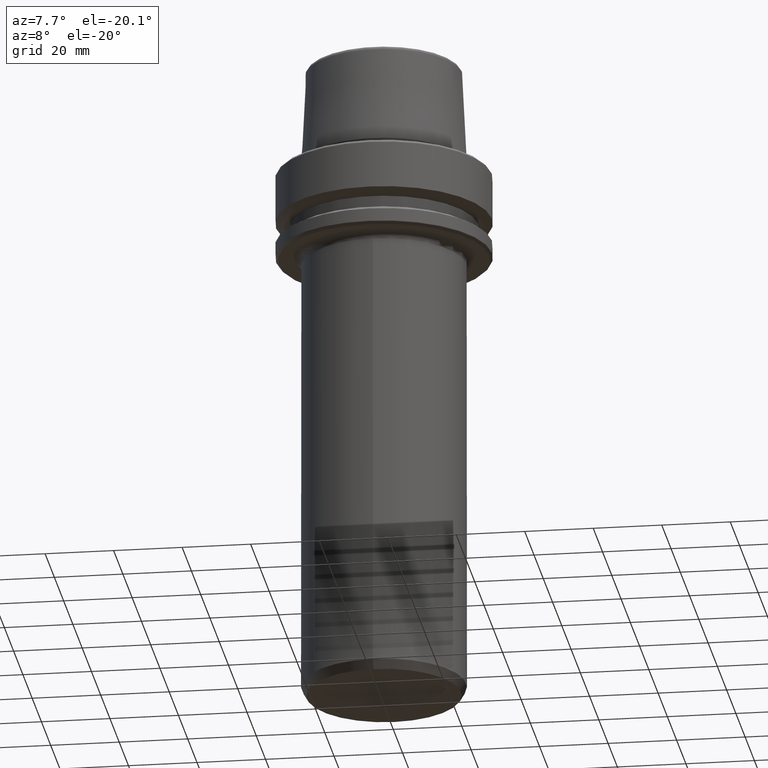
[diagram: clean part render]
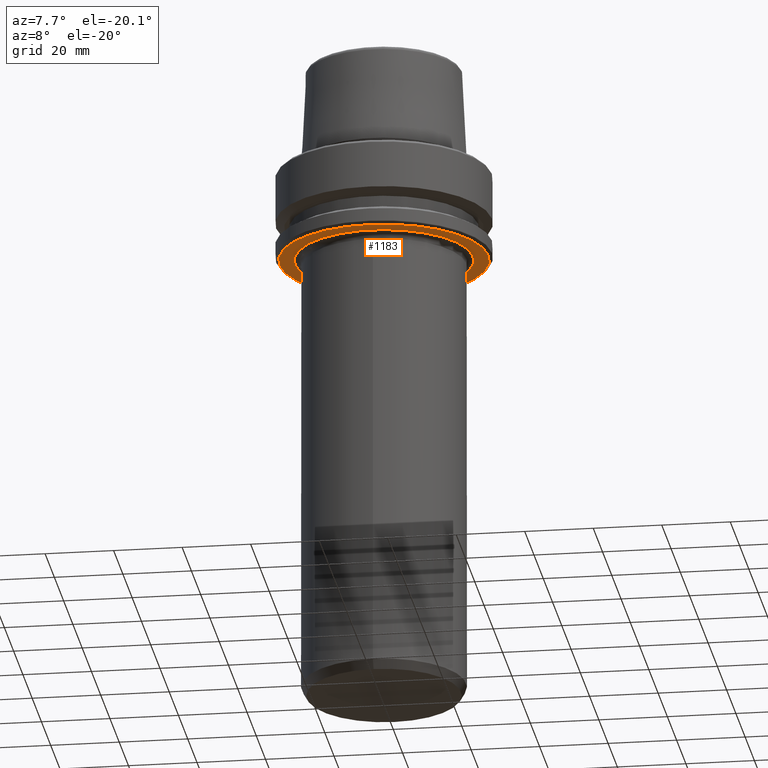
[diagram: same view with one face highlighted and labeled with its STEP entity id]
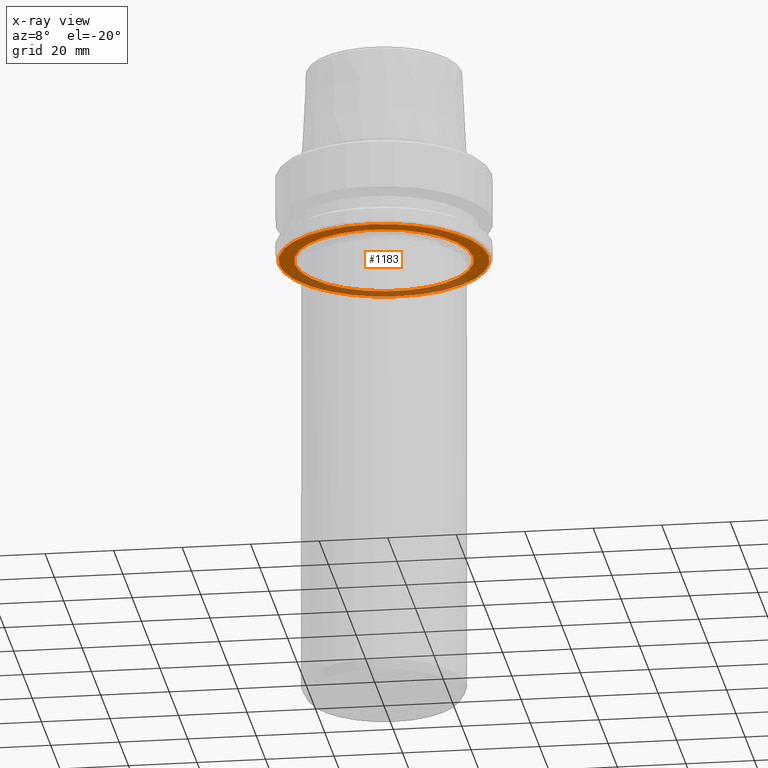
[diagram: x-ray of the same camera — body ghosted, the highlighted face saturated]
A machine part, auxiliary view. The second image highlights one B-rep face of the part: STEP entity #1183.
The next image is the same camera in x-ray: the body ghosted, the highlighted face saturated — about 31% of this face is hidden behind the body in this view.
In plain terms, the highlighted planar face has unit normal (0, -0, 1).
Its self-contained STEP definition (entity closure, byte-faithful):
#27 = CARTESIAN_POINT ( 'NONE',  ( 0.0000000000000000000, 4.569577608758799000E-017, -26.00000000000000700 ) ) ;
#32 = CARTESIAN_POINT ( 'NONE',  ( 30.53431457505076500, 0.0000000000000000000, -26.00000000000001100 ) ) ;
#63 = AXIS2_PLACEMENT_3D ( 'NONE', #450, #1140, #537 ) ;
#129 = EDGE_CURVE ( 'NONE', #168, #1109, #217, .T. ) ;
#140 = DIRECTION ( 'NONE',  ( 1.000000000000000000, 0.0000000000000000000, 0.0000000000000000000 ) ) ;
#147 = EDGE_LOOP ( 'NONE', ( #541, #873 ) ) ;
#156 = CARTESIAN_POINT ( 'NONE',  ( 0.0000000000000000000, 30.53431457505076500, -26.00000000000000700 ) ) ;
#168 = VERTEX_POINT ( 'NONE', #874 ) ;
#189 = CARTESIAN_POINT ( 'NONE',  ( 0.0000000000000000000, 4.569577608758799000E-017, -26.00000000000000700 ) ) ;
#215 = FACE_BOUND ( 'NONE', #433, .T. ) ;
#217 = CIRCLE ( 'NONE', #1062, 30.53431457505076500 ) ;
#262 = CIRCLE ( 'NONE', #793, 26.00000000000000400 ) ;
#279 = AXIS2_PLACEMENT_3D ( 'NONE', #156, #1228, #627 ) ;
#299 = AXIS2_PLACEMENT_3D ( 'NONE', #27, #705, #140 ) ;
#301 = CIRCLE ( 'NONE', #299, 26.00000000000000400 ) ;
#333 = CIRCLE ( 'NONE', #63, 30.53431457505076500 ) ;
#381 = VERTEX_POINT ( 'NONE', #715 ) ;
#433 = EDGE_LOOP ( 'NONE', ( #489, #976 ) ) ;
#450 = CARTESIAN_POINT ( 'NONE',  ( 0.0000000000000000000, 0.0000000000000000000, -26.00000000000001100 ) ) ;
#489 = ORIENTED_EDGE ( 'NONE', *, *, #580, .T. ) ;
#516 = PLANE ( 'NONE',  #279 ) ;
#537 = DIRECTION ( 'NONE',  ( 1.000000000000000000, 0.0000000000000000000, 0.0000000000000000000 ) ) ;
#541 = ORIENTED_EDGE ( 'NONE', *, *, #1000, .F. ) ;
#548 = VERTEX_POINT ( 'NONE', #954 ) ;
#580 = EDGE_CURVE ( 'NONE', #381, #548, #262, .T. ) ;
#627 = DIRECTION ( 'NONE',  ( 1.000000000000000000, 0.0000000000000000000, 0.0000000000000000000 ) ) ;
#650 = DIRECTION ( 'NONE',  ( -0.0000000000000000000, -0.0000000000000000000, 1.000000000000000000 ) ) ;
#705 = DIRECTION ( 'NONE',  ( -0.0000000000000000000, -0.0000000000000000000, 1.000000000000000000 ) ) ;
#715 = CARTESIAN_POINT ( 'NONE',  ( 26.00000000000000400, 4.569577608758799000E-017, -26.00000000000000400 ) ) ;
#748 = DIRECTION ( 'NONE',  ( -0.0000000000000000000, -0.0000000000000000000, 1.000000000000000000 ) ) ;
#793 = AXIS2_PLACEMENT_3D ( 'NONE', #189, #748, #1252 ) ;
#873 = ORIENTED_EDGE ( 'NONE', *, *, #129, .F. ) ;
#874 = CARTESIAN_POINT ( 'NONE',  ( -30.53431457505076500, 3.756694181974138600E-015, -26.00000000000001100 ) ) ;
#942 = DIRECTION ( 'NONE',  ( 1.000000000000000000, 0.0000000000000000000, 0.0000000000000000000 ) ) ;
#949 = FACE_OUTER_BOUND ( 'NONE', #147, .T. ) ;
#954 = CARTESIAN_POINT ( 'NONE',  ( -26.00000000000000400, 3.229777453870706400E-015, -26.00000000000000400 ) ) ;
#976 = ORIENTED_EDGE ( 'NONE', *, *, #1088, .T. ) ;
#1000 = EDGE_CURVE ( 'NONE', #1109, #168, #333, .T. ) ;
#1062 = AXIS2_PLACEMENT_3D ( 'NONE', #1151, #650, #942 ) ;
#1088 = EDGE_CURVE ( 'NONE', #548, #381, #301, .T. ) ;
#1109 = VERTEX_POINT ( 'NONE', #32 ) ;
#1140 = DIRECTION ( 'NONE',  ( -0.0000000000000000000, -0.0000000000000000000, 1.000000000000000000 ) ) ;
#1151 = CARTESIAN_POINT ( 'NONE',  ( 0.0000000000000000000, 0.0000000000000000000, -26.00000000000001100 ) ) ;
#1183 = ADVANCED_FACE ( 'NONE', ( #215, #949 ), #516, .F. ) ;
#1228 = DIRECTION ( 'NONE',  ( 0.0000000000000000000, -0.0000000000000000000, 1.000000000000000000 ) ) ;
#1252 = DIRECTION ( 'NONE',  ( 1.000000000000000000, 0.0000000000000000000, 0.0000000000000000000 ) ) ;